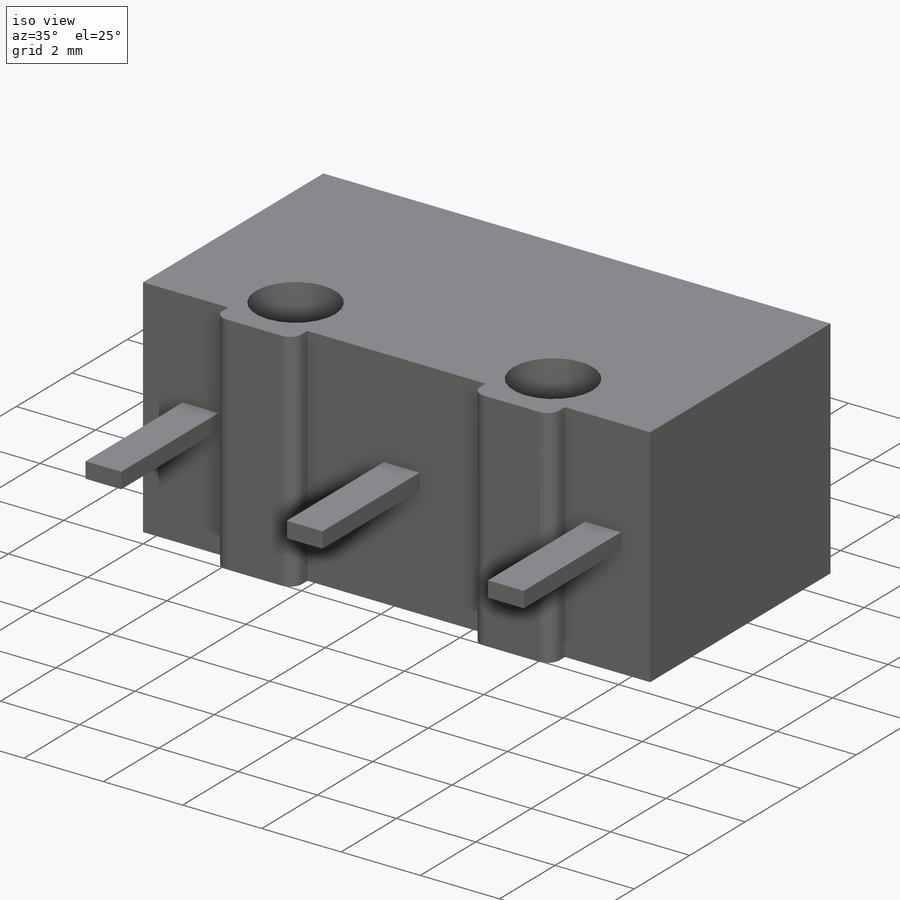
[diagram: iso view]
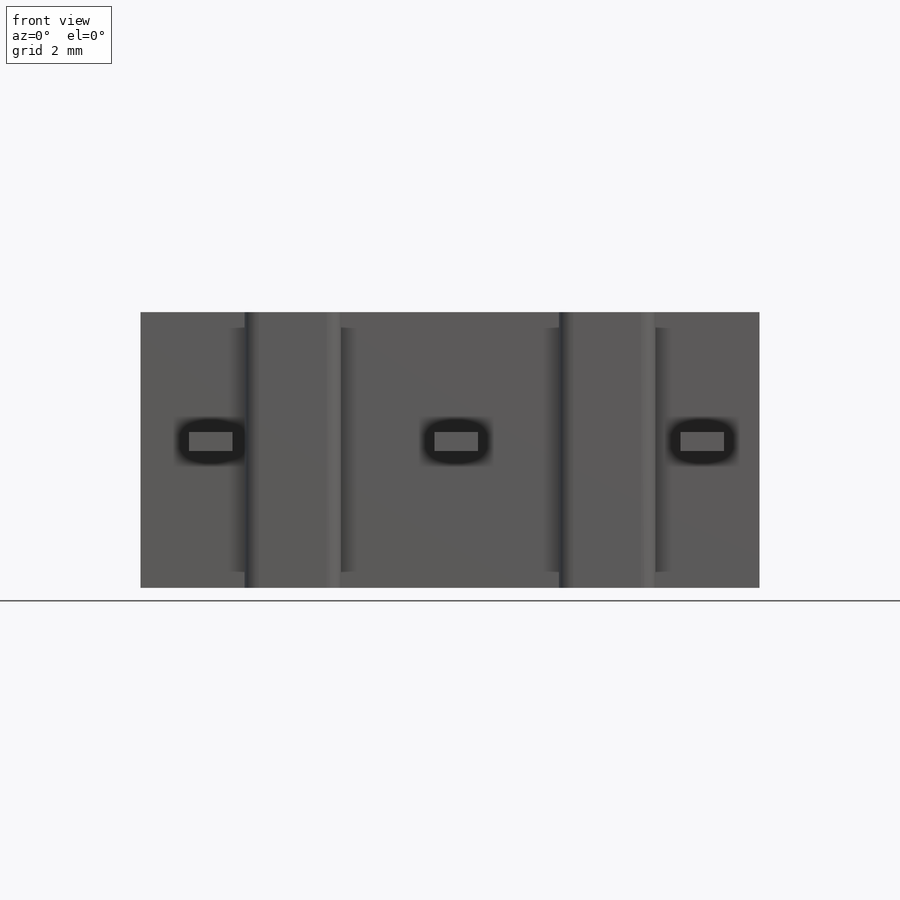
[diagram: front view]
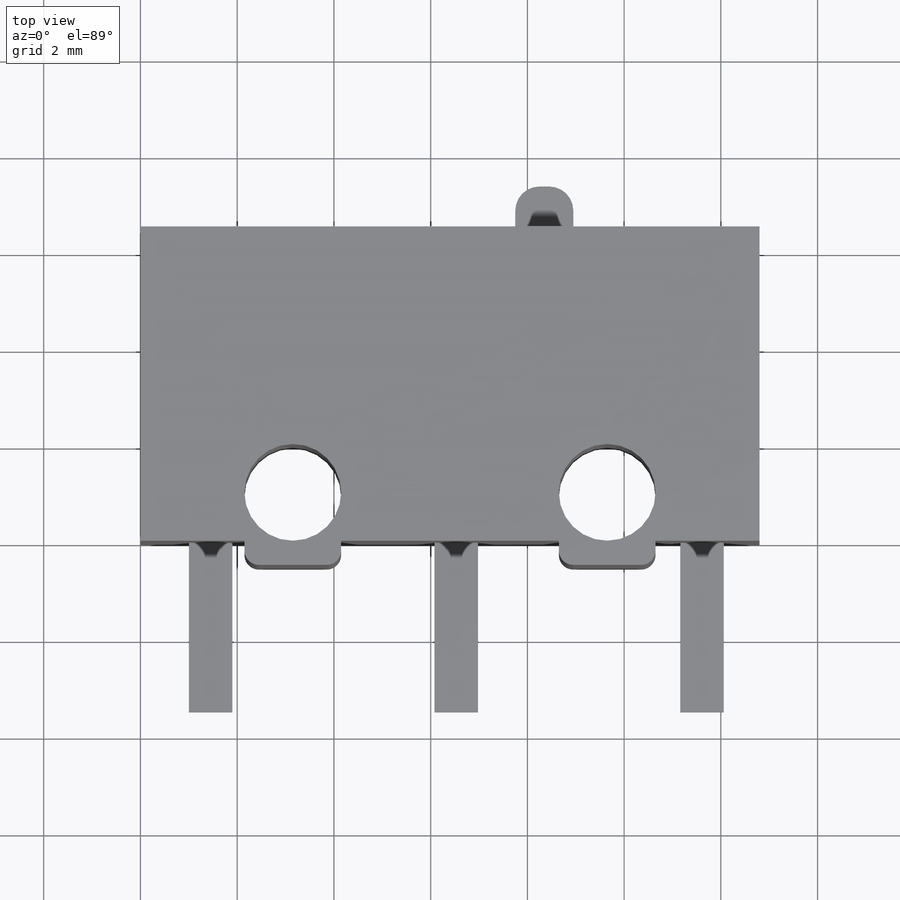
[diagram: top view]
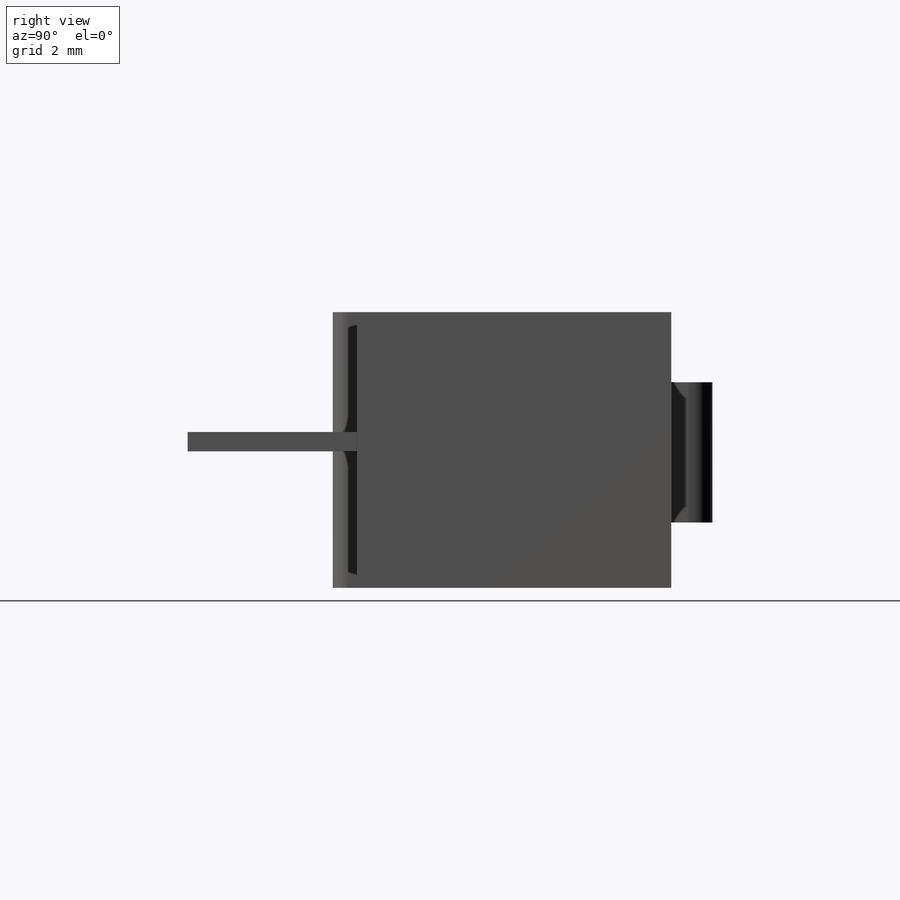
[diagram: right view]
SOLIDWORKS PART (.sldprt)
format: sldprt  version: not decoded by parser v0  size: 201,728 bytes
history: native  units: mm
features: sketch x3, extrude x3, material x1, fillet x1 (+11 scaffold rows collapsed)
feature tree (19):
  scaffold x11  (default folders/planes/origin — collapsed)
  material  "Material <not specified>"
  sketch  "Sketch1"  dims[c1.D1=2.0mm c1.D2=2.0mm c1.D3=2.0mm c2.D2=0.3mm c2.D1=~25.771494mm c3.D2=~53.369315mm c3.D1=6.5mm c4.D2=12.8mm c4.D1=3.15mm c5.D2=1.0mm c5.D3=6.5mm c5.D4=12.8mm c5.D5=6.5mm c6.D2=2.15mm]
  extrude  "Boss-Extrude1"  Depth=5.7mm
  sketch  "Sketch2"  dims[c1.D1=~2.886961mm c1.D2=~0.811958mm c2.D1=1.2mm c2.D2=2.9mm c2.D3=1.45mm c2.D4=7.75mm]
  extrude  "Boss-Extrude2"  Depth=0.85mm
  fillet  "Fillet1"  Radius=0.5mm
  sketch  "Sketch3"  dims[c1.D1=~0.608968mm c1.D2=~1.217936mm c2.D1=0.9mm c2.D2=0.4mm c2.D3=1.0mm c2.D4=3.0]
  extrude  "Boss-Extrude3"  Depth=3.5mm
decode coverage: 7 of 7 modeling features carry decoded parameters
note: ~ marks probable driven/reference dimensions
note: suppression state not decoded; provenance and decode notes live in map.json
